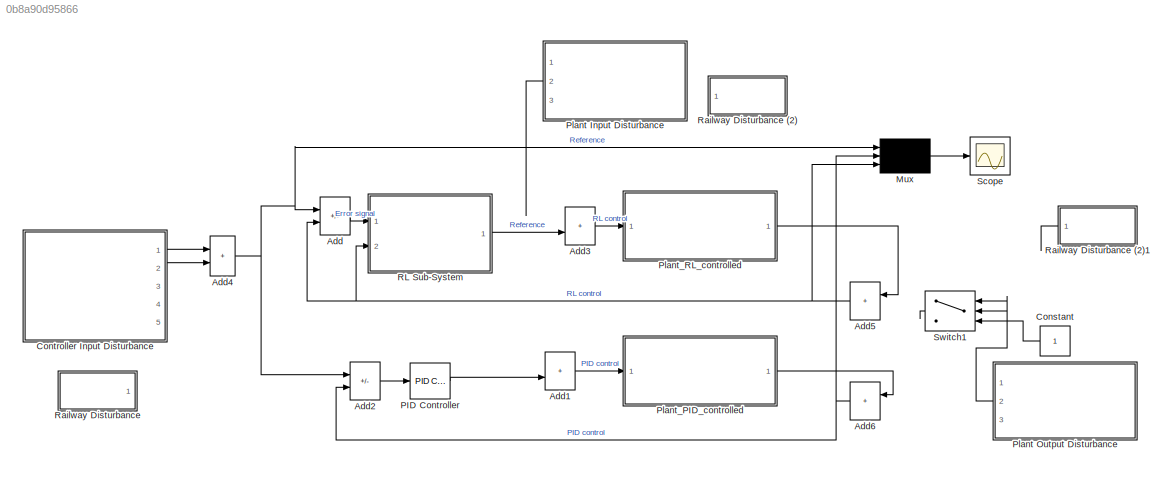
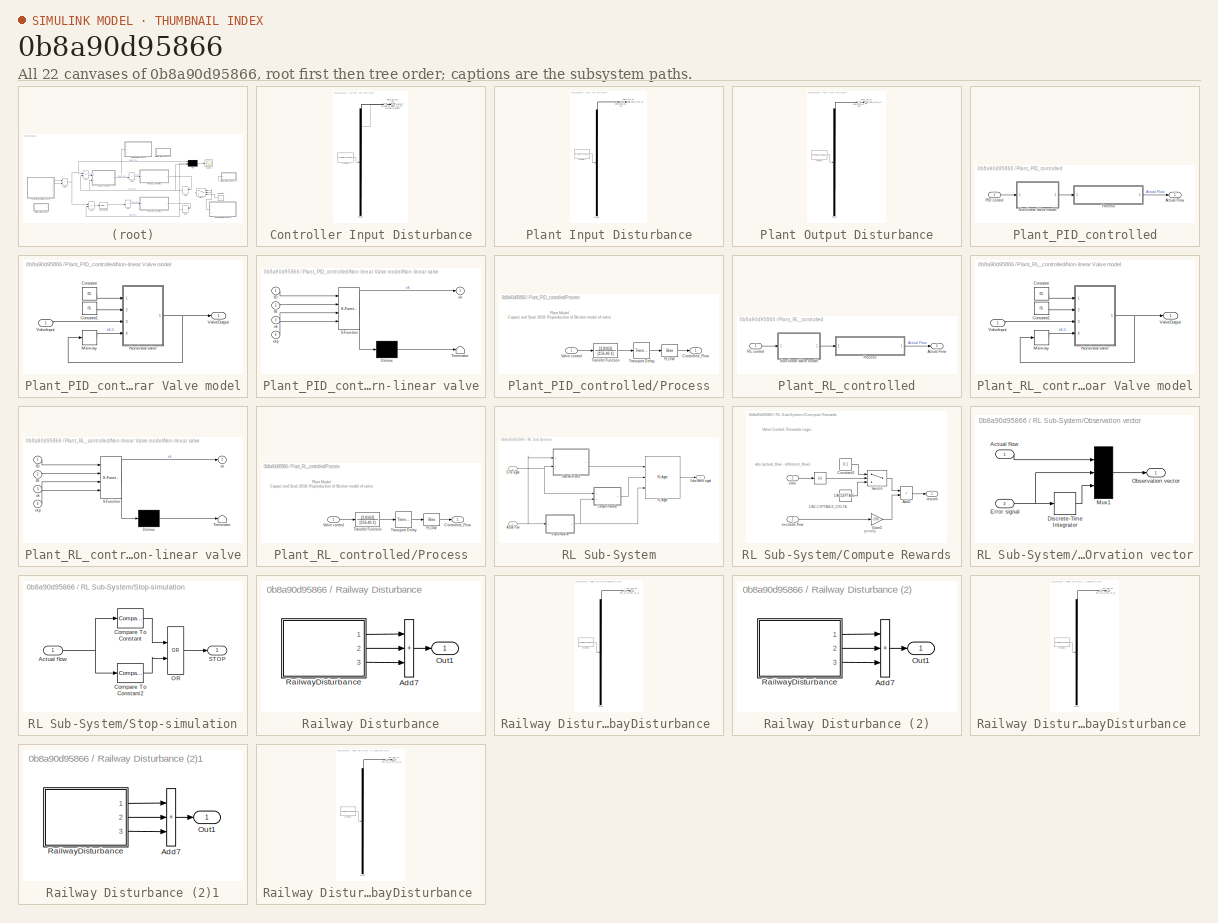
[diagram: thumbnail index - all 22 canvases of the model, root first then tree order]
MODEL slx_0b8a90d95866
KIND model
CONFIG AbsTol = auto
CONFIG EnableMultiTasking = off
CONFIG FixedStep = auto
CONFIG MaxStep = auto
CONFIG MinStep = auto
CONFIG RelTol = 1e-3
CONFIG SampleTimeConstraint = Unconstrained
CONFIG SolverName = VariableStepAuto
CONFIG StartTime = 0.0
CONFIG StopTime = 2000
BLOCK [Sum] Add
  IconShape = rectangular
  Inputs = +-
  Ports = [2, 1]
BLOCK [Sum] Add1
  IconShape = rectangular
  Ports = [2, 1]
BLOCK [Sum] Add2
  IconShape = rectangular
  Inputs = +-
  Ports = [2, 1]
BLOCK [Sum] Add3
  IconShape = rectangular
  Ports = [2, 1]
BLOCK [Sum] Add4
  IconShape = rectangular
  Ports = [2, 1]
BLOCK [Sum] Add5
  IconShape = rectangular
  Ports = [2, 1]
BLOCK [Sum] Add6
  IconShape = rectangular
  Ports = [2, 1]
BLOCK [Constant] Constant
BLOCK [SubSystem] Controller Input Disturbance
  ClipboardFcn = sigbuilder_block('clipboard');
  CloseFcn = sigbuilder_block('close');
  ContinueFcn = sigbuilder_block('continue');
  CopyFcn = sigbuilder_block('copy');
  DeleteFcn = sigbuilder_block('delete');
  LoadFcn = sigbuilder_block('load');
  MaskHideContents = on
  ModelCloseFcn = sigbuilder_block('modelClose');
  NameChangeFcn = sigbuilder_block('namechange');
  OpenFcn = sigbuilder_block('open',[329.25 -26.25 324 449.25 ]);
  PauseFcn = sigbuilder_block('pause');
  Ports = [0, 5]
  PreSaveFcn = sigbuilder_block('preSave');
  RequestExecContextInheritance = off
  StartFcn = sigbuilder_block('start');
  StopFcn = sigbuilder_block('stop');
  Tag = STV Subsys
BLOCK [Outport] Controller Input Disturbance/Constant_7
  Port = 5
  Tag = STV Outport
  VectorParamsAs1DForOutWhenUnconnected = off
BLOCK [Demux] Controller Input Disturbance/Demux
  DisplayOption = none
  Outputs = 5
  Ports = [1, 5]
  Tag = STV Demux
BLOCK [FromWorkspace] Controller Input Disturbance/FromWs
  Tag = STV FromWs
  VariableName = tuvar
BLOCK [Outport] Controller Input Disturbance/Noise_1Hz_3.0
  Port = 3
  Tag = STV Outport
  VectorParamsAs1DForOutWhenUnconnected = off
BLOCK [Outport] Controller Input Disturbance/Noise_BM_1Hz_0.01
  Port = 2
  Tag = STV Outport
  VectorParamsAs1DForOutWhenUnconnected = off
BLOCK [Outport] Controller Input Disturbance/Waveform
  Tag = STV Outport
  VectorParamsAs1DForOutWhenUnconnected = off
BLOCK [Outport] Controller Input Disturbance/Waveform_Custom
  Port = 4
  Tag = STV Outport
  VectorParamsAs1DForOutWhenUnconnected = off
BLOCK [Mux] Mux
  DisplayOption = signals
  Inputs = 3
  Ports = [3, 1]
BLOCK [Reference] PID Controller  REF=pid_lib/PID Controller
  Ports = [1, 1]
  SourceBlock = pid_lib/PID Controller
  SourceProductBaseCode = SL
  SourceType = PID 1dof
BLOCK [SubSystem] Plant Input Disturbance
  ClipboardFcn = sigbuilder_block('clipboard');
  CloseFcn = sigbuilder_block('close');
  ContinueFcn = sigbuilder_block('continue');
  CopyFcn = sigbuilder_block('copy');
  DeleteFcn = sigbuilder_block('delete');
  LoadFcn = sigbuilder_block('load');
  MaskHideContents = on
  ModelCloseFcn = sigbuilder_block('modelClose');
  NameChangeFcn = sigbuilder_block('namechange');
  OpenFcn = sigbuilder_block('open',[6 6 1012.5 506.25 ]);
  PauseFcn = sigbuilder_block('pause');
  Ports = [0, 3]
  PreSaveFcn = sigbuilder_block('preSave');
  RequestExecContextInheritance = off
  StartFcn = sigbuilder_block('start');
  StopFcn = sigbuilder_block('stop');
  Tag = STV Subsys
BLOCK [Demux] Plant Input Disturbance/Demux
  DisplayOption = none
  Outputs = 3
  Ports = [1, 3]
  Tag = STV Demux
BLOCK [FromWorkspace] Plant Input Disturbance/FromWs
  Tag = STV FromWs
  VariableName = tuvar
BLOCK [Outport] Plant Input Disturbance/Noise_0.1Hz_1.0
  Port = 3
  Tag = STV Outport
  VectorParamsAs1DForOutWhenUnconnected = off
BLOCK [Outport] Plant Input Disturbance/Noise_1Hz_3.0
  Port = 2
  Tag = STV Outport
  VectorParamsAs1DForOutWhenUnconnected = off
BLOCK [Outport] Plant Input Disturbance/Noise_BM_1Hz_0.01
  Tag = STV Outport
  VectorParamsAs1DForOutWhenUnconnected = off
BLOCK [SubSystem] Plant Output Disturbance
  ClipboardFcn = sigbuilder_block('clipboard');
  CloseFcn = sigbuilder_block('close');
  ContinueFcn = sigbuilder_block('continue');
  CopyFcn = sigbuilder_block('copy');
  DeleteFcn = sigbuilder_block('delete');
  LoadFcn = sigbuilder_block('load');
  MaskHideContents = on
  ModelCloseFcn = sigbuilder_block('modelClose');
  NameChangeFcn = sigbuilder_block('namechange');
  OpenFcn = sigbuilder_block('open',[6 6 1012.5 506.25 ]);
  PauseFcn = sigbuilder_block('pause');
  Ports = [0, 3]
  PreSaveFcn = sigbuilder_block('preSave');
  RequestExecContextInheritance = off
  StartFcn = sigbuilder_block('start');
  StopFcn = sigbuilder_block('stop');
  Tag = STV Subsys
BLOCK [Demux] Plant Output Disturbance/Demux
  DisplayOption = none
  Outputs = 3
  Ports = [1, 3]
  Tag = STV Demux
BLOCK [FromWorkspace] Plant Output Disturbance/FromWs
  Tag = STV FromWs
  VariableName = tuvar
BLOCK [Outport] Plant Output Disturbance/Noise_0.1Hz_1.0
  Port = 3
  Tag = STV Outport
  VectorParamsAs1DForOutWhenUnconnected = off
BLOCK [Outport] Plant Output Disturbance/Noise_1Hz_3.0
  Port = 2
  Tag = STV Outport
  VectorParamsAs1DForOutWhenUnconnected = off
BLOCK [Outport] Plant Output Disturbance/Noise_BM_1Hz_0.01
  Tag = STV Outport
  VectorParamsAs1DForOutWhenUnconnected = off
BLOCK [SubSystem] Plant_PID_controlled
  Ports = [1, 1]
  RequestExecContextInheritance = off
BLOCK [Outport] Plant_PID_controlled/Actual Flow
  VectorParamsAs1DForOutWhenUnconnected = off
BLOCK [SubSystem] Plant_PID_controlled/Non-linear Valve model
  Ports = [1, 1]
  RequestExecContextInheritance = off
BLOCK [Constant] Plant_PID_controlled/Non-linear Valve model/Constant
  Value = fD
BLOCK [Constant] Plant_PID_controlled/Non-linear Valve model/Constant1
  Value = fS
BLOCK [Memory] Plant_PID_controlled/Non-linear Valve model/Memory
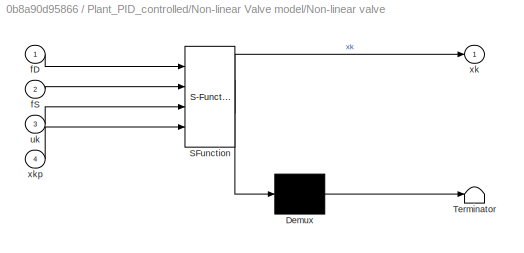
BLOCK [SubSystem] Plant_PID_controlled/Non-linear Valve model/Non-linear valve
  ErrorFcn = Stateflow.Translate.translate
  PermitHierarchicalResolution = ExplicitOnly
  Ports = [4, 1]
  RequestExecContextInheritance = off
  SFBlockType = MATLAB Function
  TreatAsAtomicUnit = on
BLOCK [Demux] Plant_PID_controlled/Non-linear Valve model/Non-linear valve/ Demux 
  Outputs = 1
  Ports = [1, 1]
BLOCK [S-Function] Plant_PID_controlled/Non-linear Valve model/Non-linear valve/ SFunction 
  EnableBusSupport = on
  FunctionName = sf_sfun
  PortCounts = [4 2]
  Ports = [4, 2]
  SFcnIsStateOwnerBlock = off
  SFunctionDeploymentMode = off
  Tag = Stateflow S-Function 1
BLOCK [Terminator] Plant_PID_controlled/Non-linear Valve model/Non-linear valve/ Terminator 
BLOCK [Inport] Plant_PID_controlled/Non-linear Valve model/Non-linear valve/fD
BLOCK [Inport] Plant_PID_controlled/Non-linear Valve model/Non-linear valve/fS
  Port = 2
BLOCK [Inport] Plant_PID_controlled/Non-linear Valve model/Non-linear valve/uk
  Port = 3
BLOCK [Outport] Plant_PID_controlled/Non-linear Valve model/Non-linear valve/xk
  VectorParamsAs1DForOutWhenUnconnected = off
BLOCK [Inport] Plant_PID_controlled/Non-linear Valve model/Non-linear valve/xkp
  Port = 4
BLOCK [Inport] Plant_PID_controlled/Non-linear Valve model/ValveInput
BLOCK [Outport] Plant_PID_controlled/Non-linear Valve model/ValveOutput
  VectorParamsAs1DForOutWhenUnconnected = off
BLOCK [Inport] Plant_PID_controlled/PID control
BLOCK [SubSystem] Plant_PID_controlled/Process
  Ports = [1, 1]
  RequestExecContextInheritance = off
BLOCK [Outport] Plant_PID_controlled/Process/Controlled_Flow
  VectorParamsAs1DForOutWhenUnconnected = off
BLOCK [Bias] Plant_PID_controlled/Process/FLOW
  SaturateOnIntegerOverflow = off
BLOCK [TransferFcn] Plant_PID_controlled/Process/Transfer Function
  Denominator = [156.46 1]
  Numerator = [3.8163]
BLOCK [TransportDelay] Plant_PID_controlled/Process/Transport Delay 
  DelayTime = TIME_DELAY
  Ports = [1, 1]
BLOCK [Inport] Plant_PID_controlled/Process/Valve control
BLOCK [SubSystem] Plant_RL_controlled
  Ports = [1, 1]
  RequestExecContextInheritance = off
BLOCK [Outport] Plant_RL_controlled/Actual Flow
  VectorParamsAs1DForOutWhenUnconnected = off
BLOCK [SubSystem] Plant_RL_controlled/Non-linear Valve model
  Ports = [1, 1]
  RequestExecContextInheritance = off
BLOCK [Constant] Plant_RL_controlled/Non-linear Valve model/Constant
  Value = fD
BLOCK [Constant] Plant_RL_controlled/Non-linear Valve model/Constant1
  Value = fS
BLOCK [Memory] Plant_RL_controlled/Non-linear Valve model/Memory
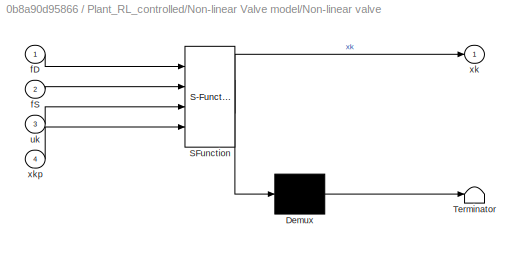
BLOCK [SubSystem] Plant_RL_controlled/Non-linear Valve model/Non-linear valve
  ErrorFcn = Stateflow.Translate.translate
  PermitHierarchicalResolution = ExplicitOnly
  Ports = [4, 1]
  RequestExecContextInheritance = off
  SFBlockType = MATLAB Function
  TreatAsAtomicUnit = on
BLOCK [Demux] Plant_RL_controlled/Non-linear Valve model/Non-linear valve/ Demux 
  Outputs = 1
  Ports = [1, 1]
BLOCK [S-Function] Plant_RL_controlled/Non-linear Valve model/Non-linear valve/ SFunction 
  EnableBusSupport = on
  FunctionName = sf_sfun
  PortCounts = [4 2]
  Ports = [4, 2]
  SFcnIsStateOwnerBlock = off
  SFunctionDeploymentMode = off
  Tag = Stateflow S-Function 2
BLOCK [Terminator] Plant_RL_controlled/Non-linear Valve model/Non-linear valve/ Terminator 
BLOCK [Inport] Plant_RL_controlled/Non-linear Valve model/Non-linear valve/fD
BLOCK [Inport] Plant_RL_controlled/Non-linear Valve model/Non-linear valve/fS
  Port = 2
BLOCK [Inport] Plant_RL_controlled/Non-linear Valve model/Non-linear valve/uk
  Port = 3
BLOCK [Outport] Plant_RL_controlled/Non-linear Valve model/Non-linear valve/xk
  VectorParamsAs1DForOutWhenUnconnected = off
BLOCK [Inport] Plant_RL_controlled/Non-linear Valve model/Non-linear valve/xkp
  Port = 4
BLOCK [Inport] Plant_RL_controlled/Non-linear Valve model/ValveInput
BLOCK [Outport] Plant_RL_controlled/Non-linear Valve model/ValveOutput
  VectorParamsAs1DForOutWhenUnconnected = off
BLOCK [SubSystem] Plant_RL_controlled/Process
  Ports = [1, 1]
  RequestExecContextInheritance = off
BLOCK [Outport] Plant_RL_controlled/Process/Controlled_Flow
  VectorParamsAs1DForOutWhenUnconnected = off
BLOCK [Bias] Plant_RL_controlled/Process/FLOW
  SaturateOnIntegerOverflow = off
BLOCK [TransferFcn] Plant_RL_controlled/Process/Transfer Function
  Denominator = [156.46 1]
  Numerator = [3.8163]
BLOCK [TransportDelay] Plant_RL_controlled/Process/Transport Delay 
  DelayTime = TIME_DELAY
  Ports = [1, 1]
BLOCK [Inport] Plant_RL_controlled/Process/Valve control
BLOCK [Inport] Plant_RL_controlled/RL control
BLOCK [SubSystem] RL Sub-System
  Ports = [2, 1]
  RequestExecContextInheritance = off
BLOCK [Inport] RL Sub-System/Actual flow
  Port = 2
BLOCK [SubSystem] RL Sub-System/Compute Rewards
  Ports = [2, 1]
  RequestExecContextInheritance = off
BLOCK [Abs] RL Sub-System/Compute Rewards/ 
  SaturateOnIntegerOverflow = off
BLOCK [Sum] RL Sub-System/Compute Rewards/Add2
  IconShape = rectangular
  Ports = [2, 1]
BLOCK [Constant] RL Sub-System/Compute Rewards/Constant2
  Value = 0.1
BLOCK [Gain] RL Sub-System/Compute Rewards/Gain5
  Gain = -100
BLOCK [Switch] RL Sub-System/Compute Rewards/Switch
  Criteria = u2 > Threshold
  InputSameDT = off
  SaturateOnIntegerOverflow = off
  Threshold = ACCEPTABLE_DELTA
BLOCK [Inport] RL Sub-System/Compute Rewards/error
BLOCK [Inport] RL Sub-System/Compute Rewards/exceeds flow
  Port = 2
BLOCK [Outport] RL Sub-System/Compute Rewards/reward
  VectorParamsAs1DForOutWhenUnconnected = off
BLOCK [Inport] RL Sub-System/Error signal
BLOCK [SubSystem] RL Sub-System/Observation vector
  Ports = [2, 1]
  RequestExecContextInheritance = off
BLOCK [Inport] RL Sub-System/Observation vector/Actual flow
BLOCK [DiscreteIntegrator] RL Sub-System/Observation vector/Discrete-Time Integrator
  ICPrevOutput = DiscIntNeverNeededParam
  ICPrevScaledInput = DiscIntNeverNeededParam
  InitialConditionSetting = Auto
  Ports = [1, 1]
  SampleTime = Ts
BLOCK [Inport] RL Sub-System/Observation vector/Error signal
  Port = 2
BLOCK [Mux] RL Sub-System/Observation vector/Mux1
  DisplayOption = bar
  Inputs = 3
  Ports = [3, 1]
BLOCK [Outport] RL Sub-System/Observation vector/Observation vector
  VectorParamsAs1DForOutWhenUnconnected = off
BLOCK [Reference] RL Sub-System/RL Agent  REF=rllib/RL Agent
  Ports = [3, 1]
  SourceBlock = rllib/RL Agent
  SourceProductBaseCode = RL
  SourceType = RL Agent
BLOCK [SubSystem] RL Sub-System/Stop-simulation
  Ports = [1, 1]
  RequestExecContextInheritance = off
BLOCK [Inport] RL Sub-System/Stop-simulation/Actual flow
BLOCK [Reference] RL Sub-System/Stop-simulation/Compare To Constant  REF=simulink/Logic and Bit
Operations/Compare
To Constant
  Ports = [1, 1]
  SourceBlock = simulink/Logic and Bit\nOperations/Compare\nTo Constant
  SourceProductBaseCode = SL
  SourceType = Compare To Constant
BLOCK [Reference] RL Sub-System/Stop-simulation/Compare To Constant2  REF=simulink/Logic and Bit
Operations/Compare
To Constant
  Ports = [1, 1]
  SourceBlock = simulink/Logic and Bit\nOperations/Compare\nTo Constant
  SourceProductBaseCode = SL
  SourceType = Compare To Constant
BLOCK [Logic] RL Sub-System/Stop-simulation/OR
  AllPortsSameDT = off
  IconShape = distinctive
  Operator = OR
  OutDataTypeStr = boolean
  Ports = [2, 1]
BLOCK [Outport] RL Sub-System/Stop-simulation/STOP
  VectorParamsAs1DForOutWhenUnconnected = off
BLOCK [Outport] RL Sub-System/Valve control signal
  VectorParamsAs1DForOutWhenUnconnected = off
BLOCK [SubSystem] Railway Disturbance
  Ports = [0, 1]
  RequestExecContextInheritance = off
BLOCK [SubSystem] Railway Disturbance (2)
  Ports = [0, 1]
  RequestExecContextInheritance = off
BLOCK [Sum] Railway Disturbance (2)/Add7
  IconShape = rectangular
  Inputs = 3
  Ports = [3, 1]
BLOCK [Outport] Railway Disturbance (2)/Out1
  VectorParamsAs1DForOutWhenUnconnected = off
BLOCK [SubSystem] Railway Disturbance (2)/RailwayDisturbance 
  ClipboardFcn = sigbuilder_block('clipboard');
  CloseFcn = sigbuilder_block('close');
  ContinueFcn = sigbuilder_block('continue');
  CopyFcn = sigbuilder_block('copy');
  DeleteFcn = sigbuilder_block('delete');
  LoadFcn = sigbuilder_block('load');
  MaskHideContents = on
  ModelCloseFcn = sigbuilder_block('modelClose');
  NameChangeFcn = sigbuilder_block('namechange');
  OpenFcn = sigbuilder_block('open',[577.5 6 441 506.25 ]);
  PauseFcn = sigbuilder_block('pause');
  Ports = [0, 3]
  PreSaveFcn = sigbuilder_block('preSave');
  RequestExecContextInheritance = off
  StartFcn = sigbuilder_block('start');
  StopFcn = sigbuilder_block('stop');
  Tag = STV Subsys
BLOCK [Demux] Railway Disturbance (2)/RailwayDisturbance /Demux
  DisplayOption = none
  Outputs = 3
  Ports = [1, 3]
  Tag = STV Demux
BLOCK [FromWorkspace] Railway Disturbance (2)/RailwayDisturbance /FromWs
  Tag = STV FromWs
  VariableName = tuvar
BLOCK [Outport] Railway Disturbance (2)/RailwayDisturbance /RW_0.01_3.0
  Port = 2
  Tag = STV Outport
  VectorParamsAs1DForOutWhenUnconnected = off
BLOCK [Outport] Railway Disturbance (2)/RailwayDisturbance /RW_1.0_1.0
  Port = 3
  Tag = STV Outport
  VectorParamsAs1DForOutWhenUnconnected = off
BLOCK [Outport] Railway Disturbance (2)/RailwayDisturbance /RW_50_1.0
  Tag = STV Outport
  VectorParamsAs1DForOutWhenUnconnected = off
BLOCK [SubSystem] Railway Disturbance (2)1
  Ports = [0, 1]
  RequestExecContextInheritance = off
BLOCK [Sum] Railway Disturbance (2)1/Add7
  IconShape = rectangular
  Inputs = 3
  Ports = [3, 1]
BLOCK [Outport] Railway Disturbance (2)1/Out1
  VectorParamsAs1DForOutWhenUnconnected = off
BLOCK [SubSystem] Railway Disturbance (2)1/RailwayDisturbance 
  ClipboardFcn = sigbuilder_block('clipboard');
  CloseFcn = sigbuilder_block('close');
  ContinueFcn = sigbuilder_block('continue');
  CopyFcn = sigbuilder_block('copy');
  DeleteFcn = sigbuilder_block('delete');
  LoadFcn = sigbuilder_block('load');
  MaskHideContents = on
  ModelCloseFcn = sigbuilder_block('modelClose');
  NameChangeFcn = sigbuilder_block('namechange');
  OpenFcn = sigbuilder_block('open',[577.5 6 441 506.25 ]);
  PauseFcn = sigbuilder_block('pause');
  Ports = [0, 3]
  PreSaveFcn = sigbuilder_block('preSave');
  RequestExecContextInheritance = off
  StartFcn = sigbuilder_block('start');
  StopFcn = sigbuilder_block('stop');
  Tag = STV Subsys
BLOCK [Demux] Railway Disturbance (2)1/RailwayDisturbance /Demux
  DisplayOption = none
  Outputs = 3
  Ports = [1, 3]
  Tag = STV Demux
BLOCK [FromWorkspace] Railway Disturbance (2)1/RailwayDisturbance /FromWs
  Tag = STV FromWs
  VariableName = tuvar
BLOCK [Outport] Railway Disturbance (2)1/RailwayDisturbance /RW_0.01_3.0
  Port = 2
  Tag = STV Outport
  VectorParamsAs1DForOutWhenUnconnected = off
BLOCK [Outport] Railway Disturbance (2)1/RailwayDisturbance /RW_1.0_1.0
  Port = 3
  Tag = STV Outport
  VectorParamsAs1DForOutWhenUnconnected = off
BLOCK [Outport] Railway Disturbance (2)1/RailwayDisturbance /RW_50_1.0
  Tag = STV Outport
  VectorParamsAs1DForOutWhenUnconnected = off
BLOCK [Sum] Railway Disturbance/Add7
  IconShape = rectangular
  Inputs = 3
  Ports = [3, 1]
BLOCK [Outport] Railway Disturbance/Out1
  VectorParamsAs1DForOutWhenUnconnected = off
BLOCK [SubSystem] Railway Disturbance/RailwayDisturbance 
  ClipboardFcn = sigbuilder_block('clipboard');
  CloseFcn = sigbuilder_block('close');
  ContinueFcn = sigbuilder_block('continue');
  CopyFcn = sigbuilder_block('copy');
  DeleteFcn = sigbuilder_block('delete');
  LoadFcn = sigbuilder_block('load');
  MaskHideContents = on
  ModelCloseFcn = sigbuilder_block('modelClose');
  NameChangeFcn = sigbuilder_block('namechange');
  OpenFcn = sigbuilder_block('open',[401.25 -15.75 441 506.25 ]);
  PauseFcn = sigbuilder_block('pause');
  Ports = [0, 3]
  PreSaveFcn = sigbuilder_block('preSave');
  RequestExecContextInheritance = off
  StartFcn = sigbuilder_block('start');
  StopFcn = sigbuilder_block('stop');
  Tag = STV Subsys
BLOCK [Demux] Railway Disturbance/RailwayDisturbance /Demux
  DisplayOption = none
  Outputs = 3
  Ports = [1, 3]
  Tag = STV Demux
BLOCK [FromWorkspace] Railway Disturbance/RailwayDisturbance /FromWs
  Tag = STV FromWs
  VariableName = tuvar
BLOCK [Outport] Railway Disturbance/RailwayDisturbance /RW_0.01_3.0
  Port = 2
  Tag = STV Outport
  VectorParamsAs1DForOutWhenUnconnected = off
BLOCK [Outport] Railway Disturbance/RailwayDisturbance /RW_1.0_1.0
  Port = 3
  Tag = STV Outport
  VectorParamsAs1DForOutWhenUnconnected = off
BLOCK [Outport] Railway Disturbance/RailwayDisturbance /RW_50_1.0
  Tag = STV Outport
  VectorParamsAs1DForOutWhenUnconnected = off
BLOCK [Scope] Scope
  Floating = off
  NumInputPorts = 1
  Ports = [1]
  ScopeSpecificationString = Simulink.scopes.TimeScopeBlockCfg('CurrentConfiguration', extmgr.ConfigurationSet(extmgr.Configuration('Core','General UI',true,'FigureColor',[1 1 1]),extmgr.Configuration('Core','Source UI',true),extmgr.Configuration('Sources','WiredSimulink',true),extmgr.Configuration('Visuals','Time Domain',true,'SerializedDisplays',{struct('MinYLimReal','-14.65984','MaxYLimReal','131.93854','YLabelReal','Contr...<+2108ch>
BLOCK [Switch] Switch1
  Criteria = u2 > Threshold
  InputSameDT = off
  SaturateOnIntegerOverflow = off
ANNOTATION Plant_PID_controlled/Process: Plant Model Capaci and Scali 2018 : Reproduction of Stiction model of valve
ANNOTATION Plant_RL_controlled/Process: Plant Model Capaci and Scali 2018 : Reproduction of Stiction model of valve
ANNOTATION RL Sub-System/Compute Rewards: Valve Control: Rewards Logic
ANNOTATION RL Sub-System/Compute Rewards: 1/ACCEPTABLE_DELTA
ANNOTATION RL Sub-System/Compute Rewards: abs (actual_flow - reference_flow)
ANNOTATION RL Sub-System/Compute Rewards: penalty
LINE Add1:1 -> Plant_PID_controlled:1
LINE Add2:1 -> PID Controller:1
LINE Add3:1 -> Plant_RL_controlled:1
NET Add4:1 -> Add2:1, Add:1, Mux:1
NET Add5:1 -> Add:2, Mux:3, RL Sub-System:2
NET Add6:1 -> Add2:2, Mux:2
LINE Add:1 -> RL Sub-System:1
LINE Constant:1 -> Switch1:3
LINE Controller Input Disturbance:1 -> Add4:1
LINE Controller Input Disturbance:2 -> Add4:2
LINE Mux:1 -> Scope:1
LINE PID Controller:1 -> Add1:2
NET Plant Output Disturbance:2 -> Switch1:1, Switch1:2
LINE Plant_PID_controlled/Non-linear Valve model/Constant1:1 -> Plant_PID_controlled/Non-linear Valve model/Non-linear valve:2
LINE Plant_PID_controlled/Non-linear Valve model/Constant:1 -> Plant_PID_controlled/Non-linear Valve model/Non-linear valve:1
LINE Plant_PID_controlled/Non-linear Valve model/Memory:1 -> Plant_PID_controlled/Non-linear Valve model/Non-linear valve:4
NET Plant_PID_controlled/Non-linear Valve model/Non-linear valve:1 -> Plant_PID_controlled/Non-linear Valve model/Memory:1, Plant_PID_controlled/Non-linear Valve model/ValveOutput:1
LINE Plant_PID_controlled/Non-linear Valve model/ValveInput:1 -> Plant_PID_controlled/Non-linear Valve model/Non-linear valve:3
LINE Plant_PID_controlled/Non-linear Valve model:1 -> Plant_PID_controlled/Process:1
LINE Plant_PID_controlled/PID control:1 -> Plant_PID_controlled/Non-linear Valve model:1
LINE Plant_PID_controlled/Process/FLOW:1 -> Plant_PID_controlled/Process/Controlled_Flow:1
LINE Plant_PID_controlled/Process/Transfer Function:1 -> Plant_PID_controlled/Process/Transport Delay :1
LINE Plant_PID_controlled/Process/Transport Delay :1 -> Plant_PID_controlled/Process/FLOW:1
LINE Plant_PID_controlled/Process/Valve control:1 -> Plant_PID_controlled/Process/Transfer Function:1
LINE Plant_PID_controlled/Process:1 -> Plant_PID_controlled/Actual Flow:1
LINE Plant_PID_controlled:1 -> Add6:1
LINE Plant_RL_controlled/Non-linear Valve model/Constant1:1 -> Plant_RL_controlled/Non-linear Valve model/Non-linear valve:2
LINE Plant_RL_controlled/Non-linear Valve model/Constant:1 -> Plant_RL_controlled/Non-linear Valve model/Non-linear valve:1
LINE Plant_RL_controlled/Non-linear Valve model/Memory:1 -> Plant_RL_controlled/Non-linear Valve model/Non-linear valve:4
NET Plant_RL_controlled/Non-linear Valve model/Non-linear valve:1 -> Plant_RL_controlled/Non-linear Valve model/Memory:1, Plant_RL_controlled/Non-linear Valve model/ValveOutput:1
LINE Plant_RL_controlled/Non-linear Valve model/ValveInput:1 -> Plant_RL_controlled/Non-linear Valve model/Non-linear valve:3
LINE Plant_RL_controlled/Non-linear Valve model:1 -> Plant_RL_controlled/Process:1
LINE Plant_RL_controlled/Process/FLOW:1 -> Plant_RL_controlled/Process/Controlled_Flow:1
LINE Plant_RL_controlled/Process/Transfer Function:1 -> Plant_RL_controlled/Process/Transport Delay :1
LINE Plant_RL_controlled/Process/Transport Delay :1 -> Plant_RL_controlled/Process/FLOW:1
LINE Plant_RL_controlled/Process/Valve control:1 -> Plant_RL_controlled/Process/Transfer Function:1
LINE Plant_RL_controlled/Process:1 -> Plant_RL_controlled/Actual Flow:1
LINE Plant_RL_controlled/RL control:1 -> Plant_RL_controlled/Non-linear Valve model:1
LINE Plant_RL_controlled:1 -> Add5:1
NET RL Sub-System/Actual flow:1 -> RL Sub-System/Observation vector:1, RL Sub-System/Stop-simulation:1
NET RL Sub-System/Compute Rewards/ :1 -> RL Sub-System/Compute Rewards/Switch:2, RL Sub-System/Compute Rewards/Switch:3
LINE RL Sub-System/Compute Rewards/Add2:1 -> RL Sub-System/Compute Rewards/reward:1
LINE RL Sub-System/Compute Rewards/Constant2:1 -> RL Sub-System/Compute Rewards/Switch:1
LINE RL Sub-System/Compute Rewards/Gain5:1 -> RL Sub-System/Compute Rewards/Add2:2
LINE RL Sub-System/Compute Rewards/Switch:1 -> RL Sub-System/Compute Rewards/Add2:1
LINE RL Sub-System/Compute Rewards/error:1 -> RL Sub-System/Compute Rewards/ :1
LINE RL Sub-System/Compute Rewards/exceeds flow:1 -> RL Sub-System/Compute Rewards/Gain5:1
LINE RL Sub-System/Compute Rewards:1 -> RL Sub-System/RL Agent:2
NET RL Sub-System/Error signal:1 -> RL Sub-System/Compute Rewards:1, RL Sub-System/Observation vector:2
LINE RL Sub-System/Observation vector/Actual flow:1 -> RL Sub-System/Observation vector/Mux1:1
LINE RL Sub-System/Observation vector/Discrete-Time Integrator:1 -> RL Sub-System/Observation vector/Mux1:3
NET RL Sub-System/Observation vector/Error signal:1 -> RL Sub-System/Observation vector/Discrete-Time Integrator:1, RL Sub-System/Observation vector/Mux1:2
LINE RL Sub-System/Observation vector/Mux1:1 -> RL Sub-System/Observation vector/Observation vector:1
LINE RL Sub-System/Observation vector:1 -> RL Sub-System/RL Agent:1
LINE RL Sub-System/RL Agent:1 -> RL Sub-System/Valve control signal:1
NET RL Sub-System/Stop-simulation/Actual flow:1 -> RL Sub-System/Stop-simulation/Compare To Constant2:1, RL Sub-System/Stop-simulation/Compare To Constant:1
LINE RL Sub-System/Stop-simulation/Compare To Constant2:1 -> RL Sub-System/Stop-simulation/OR:2
LINE RL Sub-System/Stop-simulation/Compare To Constant:1 -> RL Sub-System/Stop-simulation/OR:1
LINE RL Sub-System/Stop-simulation/OR:1 -> RL Sub-System/Stop-simulation/STOP:1
NET RL Sub-System/Stop-simulation:1 -> RL Sub-System/Compute Rewards:2, RL Sub-System/RL Agent:3
LINE RL Sub-System:1 -> Add3:2
LINE Railway Disturbance (2)/Add7:1 -> Railway Disturbance (2)/Out1:1
LINE Railway Disturbance (2)/RailwayDisturbance :1 -> Railway Disturbance (2)/Add7:1
LINE Railway Disturbance (2)/RailwayDisturbance :2 -> Railway Disturbance (2)/Add7:2
LINE Railway Disturbance (2)/RailwayDisturbance :3 -> Railway Disturbance (2)/Add7:3
LINE Railway Disturbance (2)1/Add7:1 -> Railway Disturbance (2)1/Out1:1
LINE Railway Disturbance (2)1/RailwayDisturbance :1 -> Railway Disturbance (2)1/Add7:1
LINE Railway Disturbance (2)1/RailwayDisturbance :2 -> Railway Disturbance (2)1/Add7:2
LINE Railway Disturbance (2)1/RailwayDisturbance :3 -> Railway Disturbance (2)1/Add7:3
LINE Railway Disturbance/Add7:1 -> Railway Disturbance/Out1:1
LINE Railway Disturbance/RailwayDisturbance :1 -> Railway Disturbance/Add7:1
LINE Railway Disturbance/RailwayDisturbance :2 -> Railway Disturbance/Add7:2
LINE Railway Disturbance/RailwayDisturbance :3 -> Railway Disturbance/Add7:3
note: NET lines group one-source signal fan-out (src -> all destinations, sorted); 1:1 wires keep LINE
CHART Plant_PID_controlled/Non-linear Valve model/Non-linear valve states=1 transitions=1
  STATE_LABEL 'eML_blk_kernel()'
  STATE_LABEL 'SCRIPT:\nfunction xk = fcn(fD, fS, uk, xkp)\n% -------------------------------------------------------------------------\n% TRAINING circuit for DDPG-RL Agent | Plant Model (RLVC4 | 09-Oct-2020)\n% Non-Linear valve model: Capaci and Scali (2018)\n% -------------------------------------------------------------------------\n% uk - fD   if uk - xk−1 > fS\n% uk + fD   if uk - xk−1 < -fS\n% xk - 1    if |uk - ...<+1092ch>'
CHART Plant_RL_controlled/Non-linear Valve model/Non-linear valve states=1 transitions=1
  STATE_LABEL 'eML_blk_kernel()'
  STATE_LABEL 'SCRIPT:\nfunction xk = fcn(fD, fS, uk, xkp)\n% -------------------------------------------------------------------------\n% TRAINING circuit for DDPG-RL Agent | Plant Model (RLVC4 | 09-Oct-2020)\n% Non-Linear valve model: Capaci and Scali (2018)\n% -------------------------------------------------------------------------\n% uk - fD   if uk - xk−1 > fS\n% uk + fD   if uk - xk−1 < -fS\n% xk - 1    if |uk - ...<+1092ch>'
CHART  states=0 transitions=0
CHART  states=0 transitions=0
